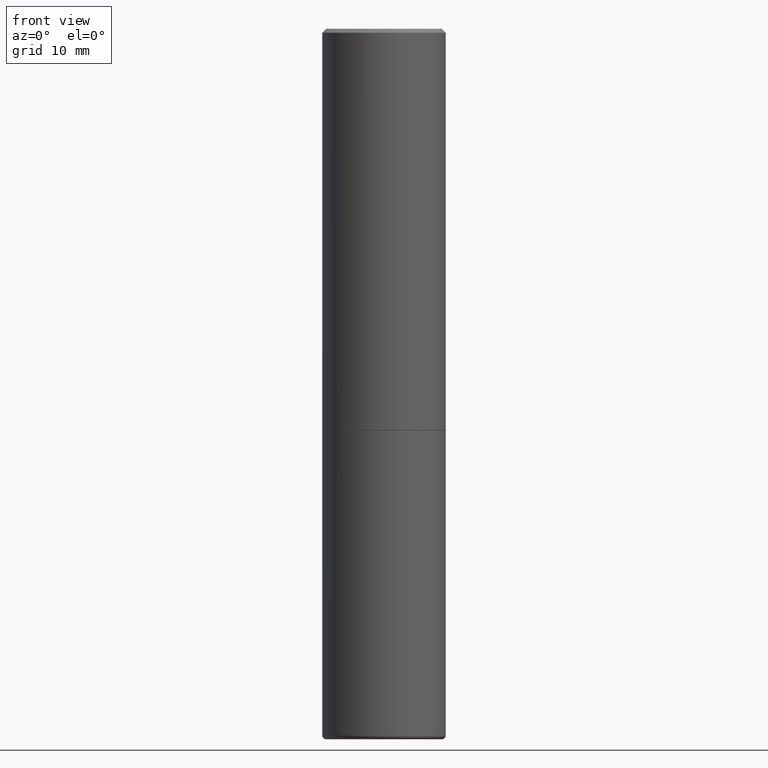
[diagram: clean part render]
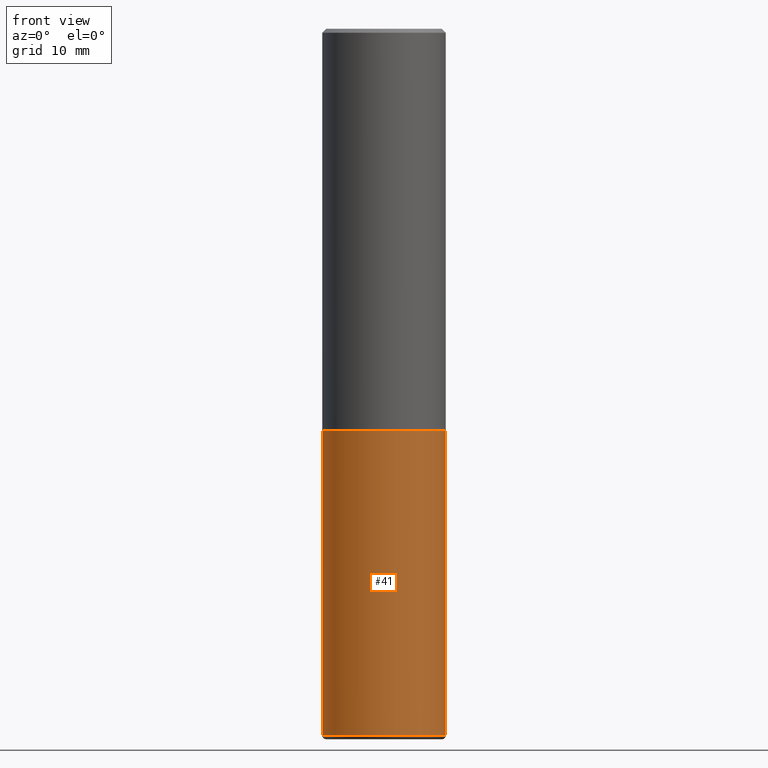
[diagram: same view with one face highlighted and labeled with its STEP entity id]
A machine part, front view. The second image highlights one B-rep face of the part: STEP entity #41.
In plain terms, the highlighted cylindrical surface (partial cylindrical patch) has radius 7.9997 mm, axis along (-0, 0, 1).
Its self-contained STEP definition (entity closure, byte-faithful):
#6 = CARTESIAN_POINT ( 'NONE',  ( 0.3149500000000000077, -2.199284095337289871E-15, 1.535751875536930130E-29 ) ) ;
#9 = EDGE_CURVE ( 'NONE', #251, #92, #352, .T. ) ;
#12 = DIRECTION ( 'NONE',  ( -2.445468806185136597E-29, 3.491481338843145583E-15, 1.000000000000000000 ) ) ;
#17 = CARTESIAN_POINT ( 'NONE',  ( 0.3149500000000000077, -9.347044692216978073E-15, -2.047199999999999687 ) ) ;
#31 = CARTESIAN_POINT ( 'NONE',  ( 8.809312280520716617E-29, -1.257736322691466396E-14, -3.602300000000000058 ) ) ;
#35 = LINE ( 'NONE', #6, #347 ) ;
#40 = CYLINDRICAL_SURFACE ( 'NONE', #252, 0.3149500000000000077 ) ;
#41 = ADVANCED_FACE ( 'NONE', ( #195 ), #40, .T. ) ;
#48 = CARTESIAN_POINT ( 'NONE',  ( -0.3149500000000000077, 2.237854346276435590E-15, -1.549218606675782676E-29 ) ) ;
#51 = VECTOR ( 'NONE', #348, 39.37007874015748143 ) ;
#56 = VERTEX_POINT ( 'NONE', #17 ) ;
#72 = DIRECTION ( 'NONE',  ( 1.000000000000000000, -6.982962677686266711E-15, 4.876176775795936353E-29 ) ) ;
#86 = ORIENTED_EDGE ( 'NONE', *, *, #418, .F. ) ;
#92 = VERTEX_POINT ( 'NONE', #113 ) ;
#96 = EDGE_CURVE ( 'NONE', #92, #56, #35, .T. ) ;
#97 = AXIS2_PLACEMENT_3D ( 'NONE', #31, #280, #131 ) ;
#113 = CARTESIAN_POINT ( 'NONE',  ( 0.3149499999999999522, -1.477664732225195383E-14, -3.602300000000000058 ) ) ;
#131 = DIRECTION ( 'NONE',  ( 1.000000000000000000, -6.982962677686269866E-15, 0.000000000000000000 ) ) ;
#135 = CARTESIAN_POINT ( 'NONE',  ( -0.3149500000000000077, -7.624707565620739308E-15, -2.047199999999999687 ) ) ;
#185 = VERTEX_POINT ( 'NONE', #135 ) ;
#186 = AXIS2_PLACEMENT_3D ( 'NONE', #289, #12, #329 ) ;
#195 = FACE_OUTER_BOUND ( 'NONE', #212, .T. ) ;
#212 = EDGE_LOOP ( 'NONE', ( #86, #272, #345, #303 ) ) ;
#222 = CARTESIAN_POINT ( 'NONE',  ( -0.3149499999999999522, -1.033950888063822640E-14, -3.602300000000000058 ) ) ;
#232 = DIRECTION ( 'NONE',  ( -2.445468806185136597E-29, 3.491481338843145583E-15, 1.000000000000000000 ) ) ;
#244 = CIRCLE ( 'NONE', #186, 0.3149500000000000077 ) ;
#251 = VERTEX_POINT ( 'NONE', #222 ) ;
#252 = AXIS2_PLACEMENT_3D ( 'NONE', #328, #232, #72 ) ;
#267 = DIRECTION ( 'NONE',  ( -2.445468806185136877E-29, 3.491481338843145188E-15, 1.000000000000000000 ) ) ;
#272 = ORIENTED_EDGE ( 'NONE', *, *, #9, .T. ) ;
#273 = EDGE_CURVE ( 'NONE', #185, #56, #244, .T. ) ;
#280 = DIRECTION ( 'NONE',  ( -2.445468806185136597E-29, 3.491481338843145583E-15, 1.000000000000000000 ) ) ;
#289 = CARTESIAN_POINT ( 'NONE',  ( 5.006363740022211120E-29, -7.147760596879686624E-15, -2.047199999999999687 ) ) ;
#303 = ORIENTED_EDGE ( 'NONE', *, *, #273, .F. ) ;
#328 = CARTESIAN_POINT ( 'NONE',  ( 0.000000000000000000, 0.000000000000000000, 0.000000000000000000 ) ) ;
#329 = DIRECTION ( 'NONE',  ( 1.000000000000000000, -6.982962677686269866E-15, 0.000000000000000000 ) ) ;
#335 = LINE ( 'NONE', #48, #51 ) ;
#345 = ORIENTED_EDGE ( 'NONE', *, *, #96, .T. ) ;
#347 = VECTOR ( 'NONE', #267, 39.37007874015748143 ) ;
#348 = DIRECTION ( 'NONE',  ( -2.445468806185136877E-29, 3.491481338843145188E-15, 1.000000000000000000 ) ) ;
#352 = CIRCLE ( 'NONE', #97, 0.3149500000000000077 ) ;
#418 = EDGE_CURVE ( 'NONE', #251, #185, #335, .T. ) ;